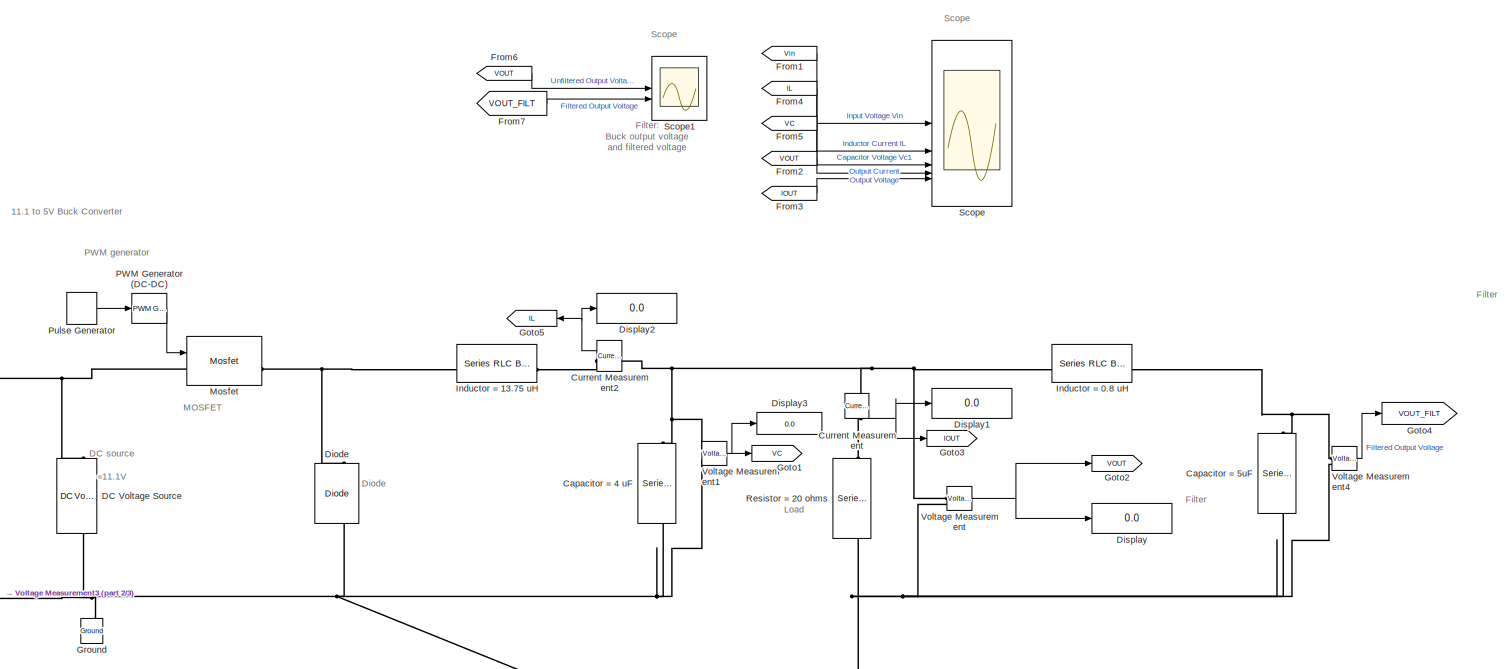
[diagram: root canvas - part 1/3, full width, middle band]
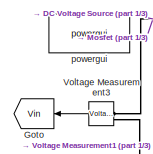
[diagram: root canvas - part 2/3, middle left region]
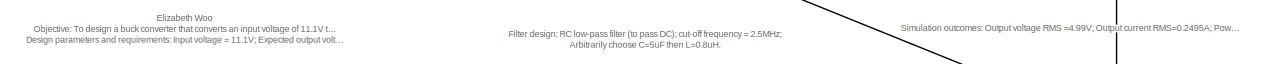
[diagram: root canvas - part 3/3, bottom center region]
MODEL slx_93ac4e0b92db
KIND model
CONFIG AbsTol = auto
CONFIG EnableMultiTasking = off
CONFIG FixedStep = auto
CONFIG MaxStep = auto
CONFIG MinStep = auto
CONFIG RelTol = 1e-6
CONFIG SampleTimeConstraint = Unconstrained
CONFIG SolverName = VariableStepAuto
CONFIG StartTime = 0.0
CONFIG StopTime = 0.2
BLOCK [Reference] Capacitor = 4 uF  REF=spsSeriesRLCBranchLib/Series RLC Branch
  LibrarySourceBlock = sps_lib/Passives/Series RLC Branch
  NameLocation = left
  SourceBlock = spsSeriesRLCBranchLib/Series RLC Branch
  SourceType = Series RLC Branch
BLOCK [Reference] Capacitor = 5uF  REF=spsSeriesRLCBranchLib/Series RLC Branch
  LibrarySourceBlock = sps_lib/Passives/Series RLC Branch
  NameLocation = left
  SourceBlock = spsSeriesRLCBranchLib/Series RLC Branch
  SourceType = Series RLC Branch
BLOCK [Reference] Current Measurement  REF=spsCurrentMeasurementLib/Current Measurement
  LibrarySourceBlock = sps_lib/Sensors and Measurements/Current Measurement
  NameLocation = left
  SourceBlock = spsCurrentMeasurementLib/Current Measurement
  SourceType = Current Measurement
  UserDataPersistent = on
BLOCK [Reference] Current Measurement2  REF=spsCurrentMeasurementLib/Current Measurement
  LibrarySourceBlock = sps_lib/Sensors and Measurements/Current Measurement
  SourceBlock = spsCurrentMeasurementLib/Current Measurement
  SourceType = Current Measurement
  UserDataPersistent = on
BLOCK [Reference] DC Voltage Source  REF=spsDCVoltageSourceLib/DC Voltage Source
  LibrarySourceBlock = sps_lib/Sources/DC Voltage Source
  NameLocation = right
  SourceBlock = spsDCVoltageSourceLib/DC Voltage Source
  SourceType = DC Voltage Source
BLOCK [Reference] Diode  REF=spsDiodeLib/Diode
  LibrarySourceBlock = sps_lib/Power Electronics/Diode
  NameLocation = right
  SourceBlock = spsDiodeLib/Diode
  SourceType = Diode
BLOCK [Display] Display
  Decimation = 1
BLOCK [Display] Display1
  Decimation = 1
BLOCK [Display] Display2
  Decimation = 1
BLOCK [Display] Display3
  Decimation = 1
BLOCK [From] From1
  GotoTag = Vin
BLOCK [From] From2
  GotoTag = VOUT
BLOCK [From] From3
  GotoTag = IOUT
BLOCK [From] From4
  GotoTag = IL
BLOCK [From] From5
  GotoTag = VC
BLOCK [From] From6
  GotoTag = VOUT
BLOCK [From] From7
  GotoTag = VOUT_FILT
BLOCK [Goto] Goto
  GotoTag = Vin
BLOCK [Goto] Goto1
  GotoTag = VC
BLOCK [Goto] Goto2
  GotoTag = VOUT
BLOCK [Goto] Goto3
  GotoTag = IOUT
BLOCK [Goto] Goto4
  GotoTag = VOUT_FILT
BLOCK [Goto] Goto5
  GotoTag = IL
BLOCK [Reference] Ground  REF=spsGroundLib/Ground
  LibrarySourceBlock = sps_lib/Utilities/Ground
  NameLocation = right
  SourceBlock = spsGroundLib/Ground
  SourceType = Ground
BLOCK [Reference] Inductor = 0.8 uH  REF=spsSeriesRLCBranchLib/Series RLC Branch
  LibrarySourceBlock = sps_lib/Passives/Series RLC Branch
  SourceBlock = spsSeriesRLCBranchLib/Series RLC Branch
  SourceType = Series RLC Branch
BLOCK [Reference] Inductor = 13.75 uH  REF=spsSeriesRLCBranchLib/Series RLC Branch
  LibrarySourceBlock = sps_lib/Passives/Series RLC Branch
  SourceBlock = spsSeriesRLCBranchLib/Series RLC Branch
  SourceType = Series RLC Branch
BLOCK [Reference] Mosfet  REF=spsMosfetLib/Mosfet
  LibrarySourceBlock = sps_lib/Power Electronics/Mosfet
  SourceBlock = spsMosfetLib/Mosfet
  SourceType = Mosfet
BLOCK [Reference] PWM Generator (DC-DC)  REF=spsPWMGeneratorDCDCLib/PWM Generator
(DC-DC)
  LibrarySourceBlock = sps_lib/Power Electronics/Power Electronics Control/PWM Generator\n(DC-DC)
  SourceBlock = spsPWMGeneratorDCDCLib/PWM Generator\n(DC-DC)
  SourceType = PWM Generator (DC-DC)
BLOCK [DiscretePulseGenerator] Pulse Generator
  Period = 1/500000
  PulseType = Time based
  PulseWidth = 0.45*100
BLOCK [Reference] Resistor = 20 ohms  REF=spsSeriesRLCBranchLib/Series RLC Branch
  LibrarySourceBlock = sps_lib/Passives/Series RLC Branch
  NameLocation = left
  SourceBlock = spsSeriesRLCBranchLib/Series RLC Branch
  SourceType = Series RLC Branch
BLOCK [Scope] Scope
  Floating = off
  NumInputPorts = 5
  ScopeSpecificationString = Simulink.scopes.TimeScopeBlockCfg('CurrentConfiguration', extmgr.ConfigurationSet(extmgr.Configuration('Core','General UI',true),extmgr.Configuration('Core','Source UI',true),extmgr.Configuration('Sources','WiredSimulink',true,'DataLogging',true,'DataLoggingVariableName','CukConverter','DataLoggingDecimateData',true,'DataLoggingDecimation','1'),extmgr.Configuration('Visuals','Time Domain',true,'Se...<+5084ch>
BLOCK [Scope] Scope1
  Floating = off
  NumInputPorts = 2
  ScopeSpecificationString = Simulink.scopes.TimeScopeBlockCfg('CurrentConfiguration', extmgr.ConfigurationSet(extmgr.Configuration('Core','General UI',true),extmgr.Configuration('Core','Source UI',true),extmgr.Configuration('Sources','WiredSimulink',true,'DataLogging',true,'DataLoggingVariableName','OutputVoltage','DataLoggingDecimateData',true,'DataLoggingDecimation','1'),extmgr.Configuration('Visuals','Time Domain',true,'S...<+1624ch>
BLOCK [Reference] Voltage Measurement  REF=spsVoltageMeasurementLib/Voltage Measurement
  LibrarySourceBlock = sps_lib/Sensors and Measurements/Voltage Measurement
  SourceBlock = spsVoltageMeasurementLib/Voltage Measurement
  SourceType = Voltage Measurement
  UserDataPersistent = on
BLOCK [Reference] Voltage Measurement1  REF=spsVoltageMeasurementLib/Voltage Measurement
  LibrarySourceBlock = sps_lib/Sensors and Measurements/Voltage Measurement
  SourceBlock = spsVoltageMeasurementLib/Voltage Measurement
  SourceType = Voltage Measurement
  UserDataPersistent = on
BLOCK [Reference] Voltage Measurement3  REF=spsVoltageMeasurementLib/Voltage Measurement
  LibrarySourceBlock = sps_lib/Sensors and Measurements/Voltage Measurement
  SourceBlock = spsVoltageMeasurementLib/Voltage Measurement
  SourceType = Voltage Measurement
  UserDataPersistent = on
BLOCK [Reference] Voltage Measurement4  REF=spsVoltageMeasurementLib/Voltage Measurement
  LibrarySourceBlock = sps_lib/Sensors and Measurements/Voltage Measurement
  SourceBlock = spsVoltageMeasurementLib/Voltage Measurement
  SourceType = Voltage Measurement
  UserDataPersistent = on
BLOCK [Reference] powergui  REF=sps_lib/powergui
  LibrarySourceBlock = sps_lib/powergui
  Priority = 1
  SourceBlock = sps_lib/powergui
  SourceType = PSB option menu block
ANNOTATION (root): Elizabeth Woo Objective : To design a buck converter that converts an input voltage of 11.1V to an output voltage of 5V to power common electronics with an accuracy of +/- 0.01. Design parameters and requirements: Input voltage = 11.1V; Expected output voltage ~ 5V; Input Power = 6.17W; Output power = 1.25W; Output voltage ripple must not exceed 5%; Switching frequency = 500 kHz; Duty Cycle = 0.45...<+26ch>
ANNOTATION (root): Filter design: RC low-pass filter (to pass DC); cut-off frequency = 2.5MHz; Arbitrarily choose C=5uF then L=0.8uH.
ANNOTATION (root): Filter: Buck output voltage and filtered voltage
ANNOTATION (root): Simulation outcomes: Output voltage RMS =4.99V; Output current RMS=0.2495A; Power output =1.245W; Output voltage ripple approx. 5%; Filter can reduce harmonics, resulting in better DC waveform.
ANNOTATION (root): Filter
ANNOTATION (root): Load
ANNOTATION (root): 11.1 to 5V Buck Converter
ANNOTATION (root): DC source =11.1V
ANNOTATION (root): Diode
ANNOTATION (root): MOSFET
ANNOTATION (root): PWM generator
ANNOTATION (root): Scope
NET Current Measurement2:1 -> Display2:1, Goto5:1
NET Current Measurement:1 -> Display1:1, Goto3:1
LINE From1:1 -> Scope:1
LINE From2:1 -> Scope:4
LINE From3:1 -> Scope:5
LINE From4:1 -> Scope:2
LINE From5:1 -> Scope:3
LINE From6:1 -> Scope1:1
LINE From7:1 -> Scope1:2
LINE PWM Generator (DC-DC):1 -> Mosfet:1
LINE Pulse Generator:1 -> PWM Generator (DC-DC):1
NET Voltage Measurement1:1 -> Display3:1, Goto1:1
LINE Voltage Measurement3:1 -> Goto:1
LINE Voltage Measurement4:1 -> Goto4:1
NET Voltage Measurement:1 -> Display:1, Goto2:1
PNET net1: Capacitor = 4 uF:LConn1 -- Current Measurement2:LConn1 -- Current Measurement:LConn1 -- Inductor = 0.8 uH:LConn1 -- Voltage Measurement1:LConn1 -- Voltage Measurement:LConn1
PNET net2: Capacitor = 4 uF:RConn1 -- Capacitor = 5uF:RConn1 -- DC Voltage Source:LConn1 -- Diode:LConn1 -- Ground:LConn1 -- Resistor = 20 ohms:RConn1 -- Voltage Measurement1:LConn2 -- Voltage Measurement3:LConn2 -- Voltage Measurement4:LConn2 -- Voltage Measurement:LConn2
PNET net3: Capacitor = 5uF:LConn1 -- Inductor = 0.8 uH:RConn1 -- Voltage Measurement4:LConn1
PLINE Current Measurement2:RConn1 -- Inductor = 13.75 uH:RConn1
PLINE Current Measurement:RConn1 -- Resistor = 20 ohms:LConn1
PNET net4: DC Voltage Source:RConn1 -- Mosfet:LConn1 -- Voltage Measurement3:LConn1
PNET net5: Diode:RConn1 -- Inductor = 13.75 uH:LConn1 -- Mosfet:RConn1
note: NET lines group one-source signal fan-out (src -> all destinations, sorted); 1:1 wires keep LINE; PNET lines group multi-terminal physical nets as a canonical sorted terminal list (undirected conserving connections); 2-terminal nets keep the pairwise PLINE form
